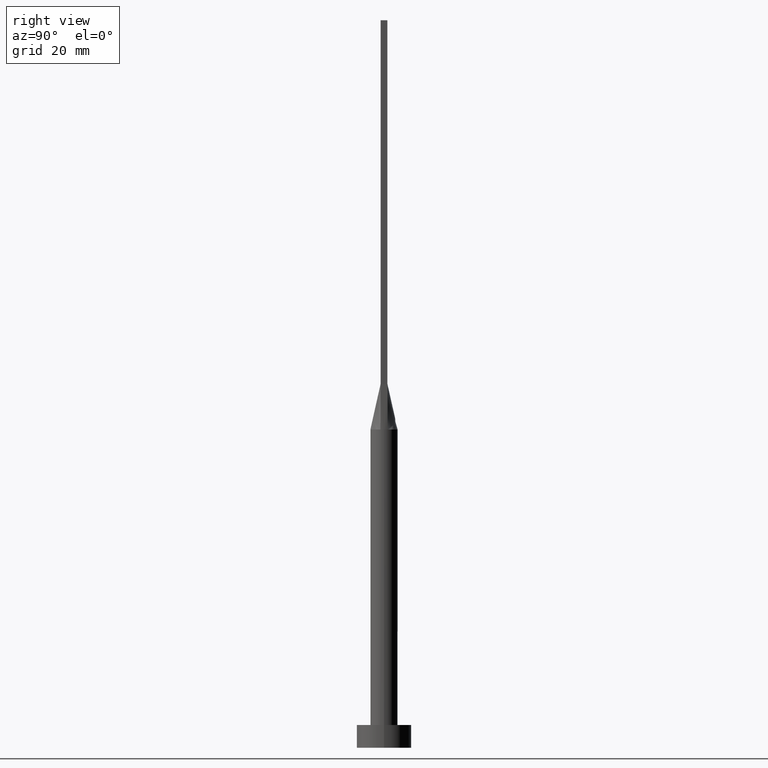
[diagram: clean part render]
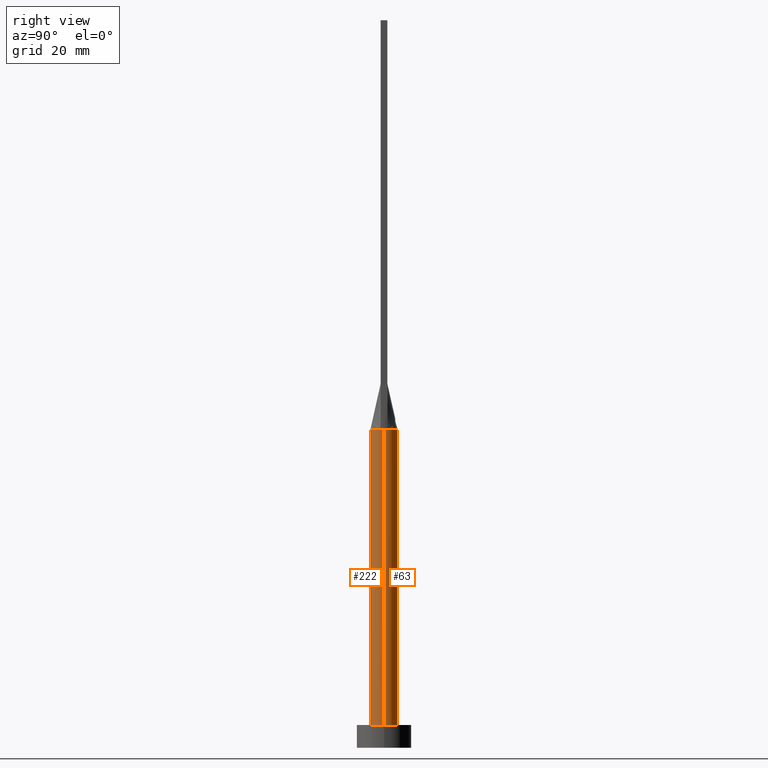
[diagram: same view with one multi-face feature highlighted, each face labeled with its STEP entity id]
A machine part, right view. The highlighted faces form ONE feature: a constant-radius fillet chain: 2 tangent blend faces with common blend radius 3 mm. The faces share edges in the B-rep.
Their STEP definitions:
[1] entity #63 (Cylinder):
#6 = CARTESIAN_POINT ( 'NONE',  ( 3.000000000000000888, 4.817174831141495148E-17, 70.00000000000000000 ) ) ;
#17 = VERTEX_POINT ( 'NONE', #42 ) ;
#26 = ORIENTED_EDGE ( 'NONE', *, *, #126, .F. ) ;
#28 = CARTESIAN_POINT ( 'NONE',  ( -2.894506632021299541, 0.7894116946786272626, 70.00000000000000000 ) ) ;
#31 = VERTEX_POINT ( 'NONE', #6 ) ;
#32 = CARTESIAN_POINT ( 'NONE',  ( 0.7628506052746800714, 2.924692134573154689, 70.00000000000001421 ) ) ;
#35 = CARTESIAN_POINT ( 'NONE',  ( 0.3818979204996085230, 3.000000000000001332, 70.00000000000000000 ) ) ;
#36 = AXIS2_PLACEMENT_3D ( 'NONE', #227, #494, #497 ) ;
#42 = CARTESIAN_POINT ( 'NONE',  ( 3.000000000000000444, 3.673940397442060361E-16, 5.000000000000000000 ) ) ;
#54 = LINE ( 'NONE', #417, #118 ) ;
#55 = DIRECTION ( 'NONE',  ( -0.000000000000000000, -0.000000000000000000, -1.000000000000000000 ) ) ;
#61 = CARTESIAN_POINT ( 'NONE',  ( 0.000000000000000000, 0.000000000000000000, 70.00000000000000000 ) ) ;
#63 = ADVANCED_FACE ( 'NONE', ( #407 ), #291, .T. ) ;
#76 = VERTEX_POINT ( 'NONE', #536 ) ;
#78 = CARTESIAN_POINT ( 'NONE',  ( -2.442412046818596139, 1.765588549521969641, 70.00000000000001421 ) ) ;
#81 = EDGE_CURVE ( 'NONE', #173, #426, #185, .T. ) ;
#83 = AXIS2_PLACEMENT_3D ( 'NONE', #61, #195, #229 ) ;
#99 = ORIENTED_EDGE ( 'NONE', *, *, #298, .T. ) ;
#118 = VECTOR ( 'NONE', #372, 1000.000000000000000 ) ;
#123 = EDGE_LOOP ( 'NONE', ( #321, #99, #294, #164, #26, #397 ) ) ;
#126 = EDGE_CURVE ( 'NONE', #426, #76, #578, .T. ) ;
#127 = CARTESIAN_POINT ( 'NONE',  ( -1.751288851749021491, 2.458468820606022565, 70.00000000000001421 ) ) ;
#135 = DIRECTION ( 'NONE',  ( -0.000000000000000000, -0.000000000000000000, -1.000000000000000000 ) ) ;
#137 = EDGE_CURVE ( 'NONE', #76, #435, #580, .T. ) ;
#164 = ORIENTED_EDGE ( 'NONE', *, *, #137, .F. ) ;
#173 = VERTEX_POINT ( 'NONE', #451 ) ;
#178 = CARTESIAN_POINT ( 'NONE',  ( -0.3818979204996078569, 3.000000000000000888, 70.00000000000001421 ) ) ;
#179 = CARTESIAN_POINT ( 'NONE',  ( -3.000000000000000444, 0.000000000000000000, 70.00000000000000000 ) ) ;
#180 = AXIS2_PLACEMENT_3D ( 'NONE', #455, #55, #277 ) ;
#185 = B_SPLINE_CURVE_WITH_KNOTS ( 'NONE', 3,
 ( #553, #307, #516, #431, #440, #394, #400, #32, #35, #178, #212, #527, #127, #477, #78, #264, #436, #28 ),
 .UNSPECIFIED., .F., .F.,
 ( 4, 2, 2, 2, 2, 2, 2, 2, 4 ),
 ( 0.000000000000000000, 0.1250000000000000000, 0.2500000000000000000, 0.3750000000000000000, 0.5000000000000000000, 0.6250000000000000000, 0.7500000000000000000, 0.8750000000000000000, 1.000000000000000000 ),
 .UNSPECIFIED. ) ;
#192 = VECTOR ( 'NONE', #135, 1000.000000000000000 ) ;
#195 = DIRECTION ( 'NONE',  ( 0.000000000000000000, 0.000000000000000000, 1.000000000000000000 ) ) ;
#200 = CARTESIAN_POINT ( 'NONE',  ( -2.894506632021299541, 0.7894116946786272626, 70.00000000000000000 ) ) ;
#212 = CARTESIAN_POINT ( 'NONE',  ( -0.7628506052746797383, 2.924692134573155133, 70.00000000000001421 ) ) ;
#227 = CARTESIAN_POINT ( 'NONE',  ( 0.000000000000000000, 0.000000000000000000, 70.00000000000000000 ) ) ;
#229 = DIRECTION ( 'NONE',  ( 1.000000000000000000, 0.000000000000000000, 0.000000000000000000 ) ) ;
#233 = DIRECTION ( 'NONE',  ( 0.000000000000000000, 0.000000000000000000, 1.000000000000000000 ) ) ;
#262 = CIRCLE ( 'NONE', #389, 3.000000000000000444 ) ;
#264 = CARTESIAN_POINT ( 'NONE',  ( -2.733316749964668002, 1.269511353635830453, 70.00000000000001421 ) ) ;
#277 = DIRECTION ( 'NONE',  ( -1.000000000000000000, 0.000000000000000000, 0.000000000000000000 ) ) ;
#291 = CYLINDRICAL_SURFACE ( 'NONE', #180, 3.000000000000000444 ) ;
#292 = DIRECTION ( 'NONE',  ( 1.000000000000000000, 0.000000000000000000, 0.000000000000000000 ) ) ;
#294 = ORIENTED_EDGE ( 'NONE', *, *, #427, .T. ) ;
#295 = CARTESIAN_POINT ( 'NONE',  ( -3.000000000000000444, 0.000000000000000000, 5.000000000000000000 ) ) ;
#298 = EDGE_CURVE ( 'NONE', #31, #17, #54, .T. ) ;
#307 = CARTESIAN_POINT ( 'NONE',  ( 2.830829925251657997, 1.022044525068634302, 70.00000000000001421 ) ) ;
#321 = ORIENTED_EDGE ( 'NONE', *, *, #396, .F. ) ;
#372 = DIRECTION ( 'NONE',  ( -0.000000000000000000, -0.000000000000000000, -1.000000000000000000 ) ) ;
#389 = AXIS2_PLACEMENT_3D ( 'NONE', #463, #233, #292 ) ;
#394 = CARTESIAN_POINT ( 'NONE',  ( 1.751288851749022379, 2.458468820606022565, 70.00000000000001421 ) ) ;
#396 = EDGE_CURVE ( 'NONE', #31, #173, #579, .T. ) ;
#397 = ORIENTED_EDGE ( 'NONE', *, *, #81, .F. ) ;
#400 = CARTESIAN_POINT ( 'NONE',  ( 1.447928580458859305, 2.653161878569118670, 70.00000000000000000 ) ) ;
#407 = FACE_OUTER_BOUND ( 'NONE', #123, .T. ) ;
#417 = CARTESIAN_POINT ( 'NONE',  ( 3.000000000000000444, 3.673940397442060361E-16, 70.00000000000000000 ) ) ;
#426 = VERTEX_POINT ( 'NONE', #200 ) ;
#427 = EDGE_CURVE ( 'NONE', #17, #435, #262, .T. ) ;
#431 = CARTESIAN_POINT ( 'NONE',  ( 2.442412046818595250, 1.765588549521970529, 70.00000000000000000 ) ) ;
#435 = VERTEX_POINT ( 'NONE', #295 ) ;
#436 = CARTESIAN_POINT ( 'NONE',  ( -2.830829925251659329, 1.022044525068634302, 70.00000000000001421 ) ) ;
#440 = CARTESIAN_POINT ( 'NONE',  ( 2.248179627679386172, 2.014142483996539834, 70.00000000000000000 ) ) ;
#451 = CARTESIAN_POINT ( 'NONE',  ( 2.894482401701604424, 0.7894050286368272662, 70.00000000000000000 ) ) ;
#455 = CARTESIAN_POINT ( 'NONE',  ( 0.000000000000000000, 0.000000000000000000, 70.00000000000000000 ) ) ;
#463 = CARTESIAN_POINT ( 'NONE',  ( 0.000000000000000000, 0.000000000000000000, 5.000000000000000000 ) ) ;
#477 = CARTESIAN_POINT ( 'NONE',  ( -2.248179627679385728, 2.014142483996540278, 70.00000000000001421 ) ) ;
#494 = DIRECTION ( 'NONE',  ( 0.000000000000000000, 0.000000000000000000, 1.000000000000000000 ) ) ;
#497 = DIRECTION ( 'NONE',  ( 1.000000000000000000, 0.000000000000000000, 0.000000000000000000 ) ) ;
#516 = CARTESIAN_POINT ( 'NONE',  ( 2.733316749964668446, 1.269511353635831341, 70.00000000000000000 ) ) ;
#527 = CARTESIAN_POINT ( 'NONE',  ( -1.447928580458858416, 2.653161878569119558, 70.00000000000001421 ) ) ;
#536 = CARTESIAN_POINT ( 'NONE',  ( -3.000000000000000000, -1.912111867153115409E-16, 70.00000000000000000 ) ) ;
#553 = CARTESIAN_POINT ( 'NONE',  ( 2.894482401701604424, 0.7894050286368272662, 70.00000000000000000 ) ) ;
#578 = CIRCLE ( 'NONE', #36, 3.000000000000000444 ) ;
#579 = CIRCLE ( 'NONE', #83, 3.000000000000000444 ) ;
#580 = LINE ( 'NONE', #179, #192 ) ;
[2] entity #222 (Cylinder):
#6 = CARTESIAN_POINT ( 'NONE',  ( 3.000000000000000888, 4.817174831141495148E-17, 70.00000000000000000 ) ) ;
#17 = VERTEX_POINT ( 'NONE', #42 ) ;
#24 = DIRECTION ( 'NONE',  ( -0.000000000000000000, -0.000000000000000000, -1.000000000000000000 ) ) ;
#31 = VERTEX_POINT ( 'NONE', #6 ) ;
#37 = CIRCLE ( 'NONE', #424, 3.000000000000000444 ) ;
#42 = CARTESIAN_POINT ( 'NONE',  ( 3.000000000000000444, 3.673940397442060361E-16, 5.000000000000000000 ) ) ;
#54 = LINE ( 'NONE', #417, #118 ) ;
#67 = ORIENTED_EDGE ( 'NONE', *, *, #298, .F. ) ;
#76 = VERTEX_POINT ( 'NONE', #536 ) ;
#102 = DIRECTION ( 'NONE',  ( 1.000000000000000000, 0.000000000000000000, 0.000000000000000000 ) ) ;
#112 = VERTEX_POINT ( 'NONE', #500 ) ;
#118 = VECTOR ( 'NONE', #372, 1000.000000000000000 ) ;
#128 = CYLINDRICAL_SURFACE ( 'NONE', #241, 3.000000000000000444 ) ;
#135 = DIRECTION ( 'NONE',  ( -0.000000000000000000, -0.000000000000000000, -1.000000000000000000 ) ) ;
#137 = EDGE_CURVE ( 'NONE', #76, #435, #580, .T. ) ;
#145 = DIRECTION ( 'NONE',  ( 1.000000000000000000, 0.000000000000000000, 0.000000000000000000 ) ) ;
#148 = DIRECTION ( 'NONE',  ( 0.000000000000000000, 0.000000000000000000, 1.000000000000000000 ) ) ;
#156 = ORIENTED_EDGE ( 'NONE', *, *, #581, .F. ) ;
#168 = DIRECTION ( 'NONE',  ( 0.000000000000000000, 0.000000000000000000, 1.000000000000000000 ) ) ;
#179 = CARTESIAN_POINT ( 'NONE',  ( -3.000000000000000444, 0.000000000000000000, 70.00000000000000000 ) ) ;
#187 = CARTESIAN_POINT ( 'NONE',  ( 0.000000000000000000, 0.000000000000000000, 5.000000000000000000 ) ) ;
#192 = VECTOR ( 'NONE', #135, 1000.000000000000000 ) ;
#199 = ORIENTED_EDGE ( 'NONE', *, *, #486, .F. ) ;
#205 = ORIENTED_EDGE ( 'NONE', *, *, #403, .T. ) ;
#222 = ADVANCED_FACE ( 'NONE', ( #483 ), #128, .T. ) ;
#232 = EDGE_CURVE ( 'NONE', #76, #112, #563, .T. ) ;
#241 = AXIS2_PLACEMENT_3D ( 'NONE', #318, #24, #567 ) ;
#244 = CARTESIAN_POINT ( 'NONE',  ( 0.000000000000000000, 0.000000000000000000, 70.00000000000000000 ) ) ;
#279 = DIRECTION ( 'NONE',  ( 1.000000000000000000, 0.000000000000000000, 0.000000000000000000 ) ) ;
#285 = CARTESIAN_POINT ( 'NONE',  ( 2.894514141151844910, -0.7894138151126538494, 70.00000000000000000 ) ) ;
#295 = CARTESIAN_POINT ( 'NONE',  ( -3.000000000000000444, 0.000000000000000000, 5.000000000000000000 ) ) ;
#298 = EDGE_CURVE ( 'NONE', #31, #17, #54, .T. ) ;
#299 = DIRECTION ( 'NONE',  ( 1.000000000000000000, -5.329070518200751394E-15, 0.000000000000000000 ) ) ;
#312 = CARTESIAN_POINT ( 'NONE',  ( 0.000000000000000000, 0.000000000000000000, 70.00000000000000000 ) ) ;
#318 = CARTESIAN_POINT ( 'NONE',  ( 0.000000000000000000, 0.000000000000000000, 70.00000000000000000 ) ) ;
#336 = CIRCLE ( 'NONE', #416, 3.000000000000000444 ) ;
#372 = DIRECTION ( 'NONE',  ( -0.000000000000000000, -0.000000000000000000, -1.000000000000000000 ) ) ;
#390 = ORIENTED_EDGE ( 'NONE', *, *, #232, .F. ) ;
#403 = EDGE_CURVE ( 'NONE', #435, #17, #37, .T. ) ;
#405 = AXIS2_PLACEMENT_3D ( 'NONE', #577, #168, #279 ) ;
#416 = AXIS2_PLACEMENT_3D ( 'NONE', #244, #148, #145 ) ;
#417 = CARTESIAN_POINT ( 'NONE',  ( 3.000000000000000444, 3.673940397442060361E-16, 70.00000000000000000 ) ) ;
#424 = AXIS2_PLACEMENT_3D ( 'NONE', #187, #537, #102 ) ;
#425 = DIRECTION ( 'NONE',  ( 0.000000000000000000, 0.000000000000000000, 1.000000000000000000 ) ) ;
#435 = VERTEX_POINT ( 'NONE', #295 ) ;
#447 = CIRCLE ( 'NONE', #458, 3.000000000000000444 ) ;
#458 = AXIS2_PLACEMENT_3D ( 'NONE', #312, #425, #299 ) ;
#469 = ORIENTED_EDGE ( 'NONE', *, *, #137, .T. ) ;
#483 = FACE_OUTER_BOUND ( 'NONE', #485, .T. ) ;
#485 = EDGE_LOOP ( 'NONE', ( #67, #156, #199, #390, #469, #205 ) ) ;
#486 = EDGE_CURVE ( 'NONE', #112, #501, #336, .T. ) ;
#500 = CARTESIAN_POINT ( 'NONE',  ( -2.894489875237701959, -0.7894071376467488577, 70.00000000000000000 ) ) ;
#501 = VERTEX_POINT ( 'NONE', #285 ) ;
#536 = CARTESIAN_POINT ( 'NONE',  ( -3.000000000000000000, -1.912111867153115409E-16, 70.00000000000000000 ) ) ;
#537 = DIRECTION ( 'NONE',  ( 0.000000000000000000, 0.000000000000000000, 1.000000000000000000 ) ) ;
#563 = CIRCLE ( 'NONE', #405, 3.000000000000000444 ) ;
#567 = DIRECTION ( 'NONE',  ( -1.000000000000000000, 0.000000000000000000, 0.000000000000000000 ) ) ;
#577 = CARTESIAN_POINT ( 'NONE',  ( 0.000000000000000000, 0.000000000000000000, 70.00000000000000000 ) ) ;
#580 = LINE ( 'NONE', #179, #192 ) ;
#581 = EDGE_CURVE ( 'NONE', #501, #31, #447, .T. ) ;